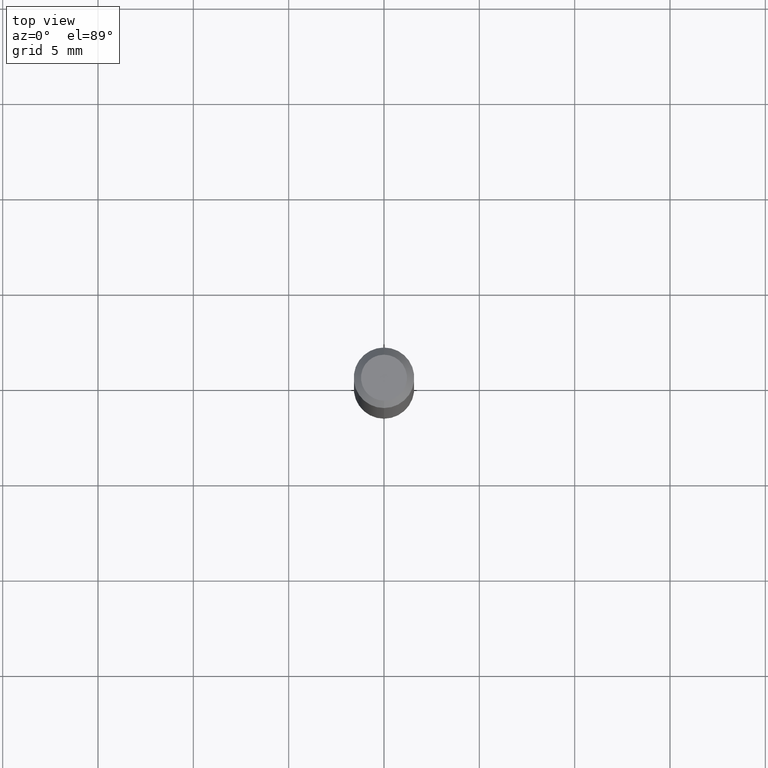
[diagram: clean part render]
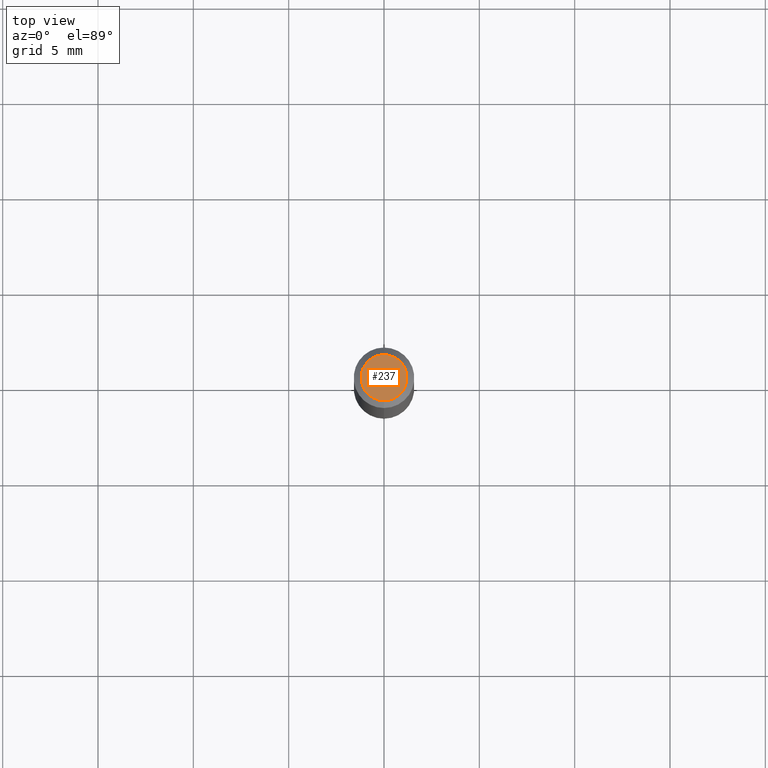
[diagram: same view with one face highlighted and labeled with its STEP entity id]
A machine part, top view. The second image highlights one B-rep face of the part: STEP entity #237.
In plain terms, the highlighted planar face has unit normal (0, -0, -1).
Its self-contained STEP definition (entity closure, byte-faithful):
#39 = CARTESIAN_POINT ( 'NONE',  ( 8.024680406694662716E-45, -1.145721333848216833E-30, -3.281462483822598204E-16 ) ) ;
#56 = CARTESIAN_POINT ( 'NONE',  ( 3.840629472727447874E-16, 0.04749999999999999362, -4.939923113072091241E-16 ) ) ;
#68 = AXIS2_PLACEMENT_3D ( 'NONE', #233, #279, #349 ) ;
#95 = VERTEX_POINT ( 'NONE', #56 ) ;
#101 = CIRCLE ( 'NONE', #504, 0.04749999999999999362 ) ;
#105 = VERTEX_POINT ( 'NONE', #183 ) ;
#112 = FACE_OUTER_BOUND ( 'NONE', #146, .T. ) ;
#116 = DIRECTION ( 'NONE',  ( -2.445458525354420395E-29, 3.491496061577879933E-15, 1.000000000000000000 ) ) ;
#146 = EDGE_LOOP ( 'NONE', ( #149, #462 ) ) ;
#149 = ORIENTED_EDGE ( 'NONE', *, *, #329, .T. ) ;
#151 = PLANE ( 'NONE',  #232 ) ;
#183 = CARTESIAN_POINT ( 'NONE',  ( -3.773273898774340269E-16, -0.04749999999999999362, -1.623001854573105413E-16 ) ) ;
#232 = AXIS2_PLACEMENT_3D ( 'NONE', #498, #307, #501 ) ;
#233 = CARTESIAN_POINT ( 'NONE',  ( 8.024680406694662716E-45, -1.145721333848216833E-30, -3.281462483822598204E-16 ) ) ;
#237 = ADVANCED_FACE ( 'NONE', ( #112 ), #151, .F. ) ;
#265 = CIRCLE ( 'NONE', #68, 0.04749999999999999362 ) ;
#279 = DIRECTION ( 'NONE',  ( -2.445458525354420395E-29, 3.491496061577879933E-15, 1.000000000000000000 ) ) ;
#307 = DIRECTION ( 'NONE',  ( 2.445458525354419834E-29, -3.491496061577879933E-15, -1.000000000000000000 ) ) ;
#329 = EDGE_CURVE ( 'NONE', #95, #105, #101, .T. ) ;
#349 = DIRECTION ( 'NONE',  ( -6.982962677686266711E-15, -1.000000000000000000, 3.491496061577879933E-15 ) ) ;
#462 = ORIENTED_EDGE ( 'NONE', *, *, #463, .T. ) ;
#463 = EDGE_CURVE ( 'NONE', #105, #95, #265, .T. ) ;
#498 = CARTESIAN_POINT ( 'NONE',  ( 3.316907271900976096E-16, 0.04749999999999999362, -3.299191871160791399E-16 ) ) ;
#501 = DIRECTION ( 'NONE',  ( 6.982962677686265922E-15, 1.000000000000000000, -3.491496061577879933E-15 ) ) ;
#504 = AXIS2_PLACEMENT_3D ( 'NONE', #39, #116, #507 ) ;
#507 = DIRECTION ( 'NONE',  ( -6.982962677686266711E-15, -1.000000000000000000, 3.491496061577879933E-15 ) ) ;